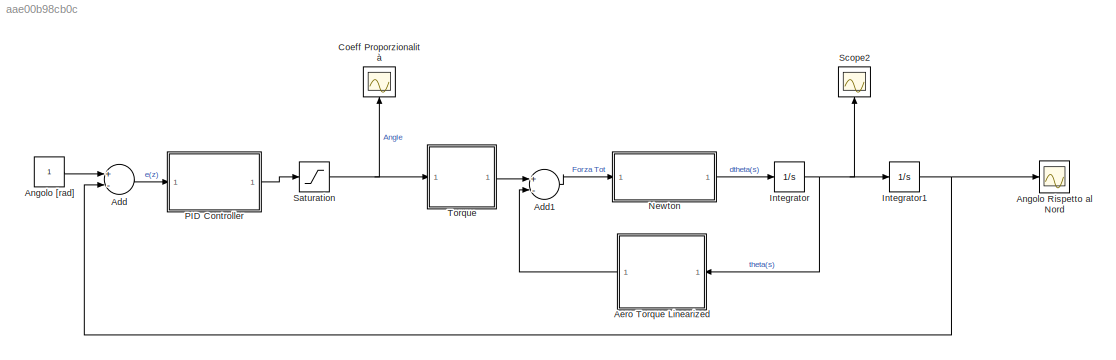
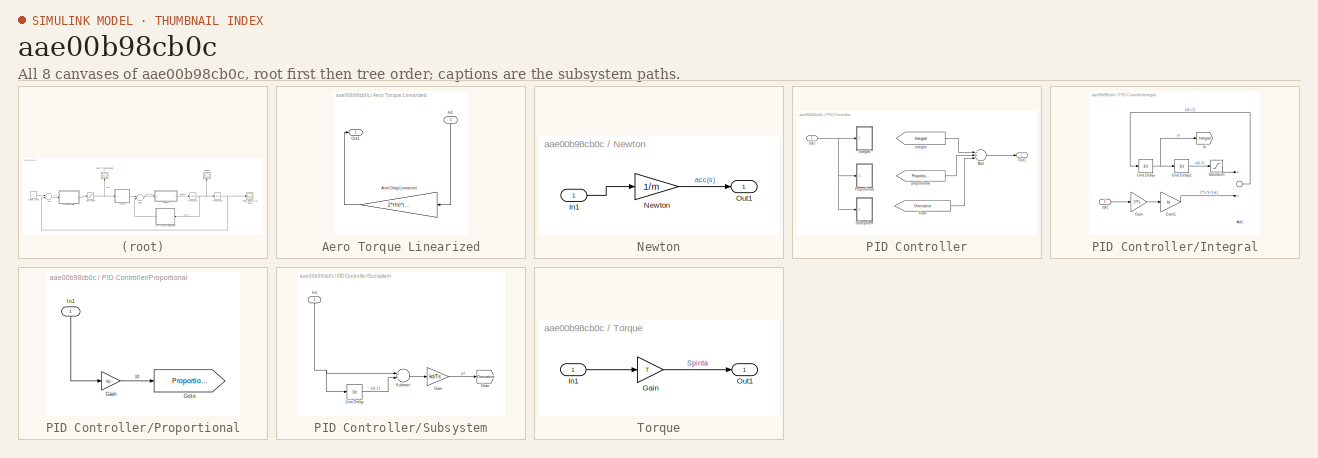
[diagram: thumbnail index - all 8 canvases of the model, root first then tree order]
MODEL slx_aae00b98cb0c
KIND model
BLOCK [Sum] Add
  InputSameDT = off
  Inputs = +-
  OutDataTypeStr = Inherit: Inherit via internal rule
  Ports = [2, 1]
  SaturateOnIntegerOverflow = off
BLOCK [Sum] Add1
  InputSameDT = off
  Inputs = +-
  OutDataTypeStr = Inherit: Inherit via internal rule
  Ports = [2, 1]
  SaturateOnIntegerOverflow = off
BLOCK [SubSystem] Aero Torque Linearized
  FunctionWithSeparateData = off
  MaskHideContents = off
  MinAlgLoopOccurrences = off
  Opaque = off
  Ports = [1, 1]
  PropExecContextOutsideSubsystem = off
  RTWSystemCode = Auto
  RequestExecContextInheritance = off
BLOCK [Gain] Aero Torque Linearized/Aero Drag Linearized
  Gain = 2*rho*(pi*radius^2)*cd*d
  OutDataTypeStr = Inherit: Inherit via internal rule
  ParamDataTypeStr = Inherit: Inherit via internal rule
  SaturateOnIntegerOverflow = off
BLOCK [Inport] Aero Torque Linearized/In1
  IconDisplay = Port number
BLOCK [Outport] Aero Torque Linearized/Out1
  IconDisplay = Port number
BLOCK [Scope] Angolo Rispetto al Nord
  DataFormat = StructureWithTime
  Floating = off
  NumInputPorts = 1
  Ports = [1]
  SampleTime = 0
  ShowLegends = off
BLOCK [Constant] Angolo [rad]
BLOCK [Scope] Coeff Proporzionalità
  DataFormat = StructureWithTime
  Floating = off
  MaxDataPoints = 10000
  NumInputPorts = 1
  Ports = [1]
  SampleTime = 0
  SaveName = ScopeData1
  ShowLegends = off
BLOCK [Integrator] Integrator
  Ports = [1, 1]
BLOCK [Integrator] Integrator1
  Ports = [1, 1]
BLOCK [SubSystem] Newton
  FunctionWithSeparateData = off
  MaskHideContents = off
  MinAlgLoopOccurrences = off
  Opaque = off
  Ports = [1, 1]
  PropExecContextOutsideSubsystem = off
  RTWSystemCode = Auto
  RequestExecContextInheritance = off
BLOCK [Inport] Newton/In1
  IconDisplay = Port number
BLOCK [Gain] Newton/Newton
  Gain = 1/m
  OutDataTypeStr = Inherit: Inherit via internal rule
  ParamDataTypeStr = Inherit: Inherit via internal rule
  SaturateOnIntegerOverflow = off
BLOCK [Outport] Newton/Out1
  IconDisplay = Port number
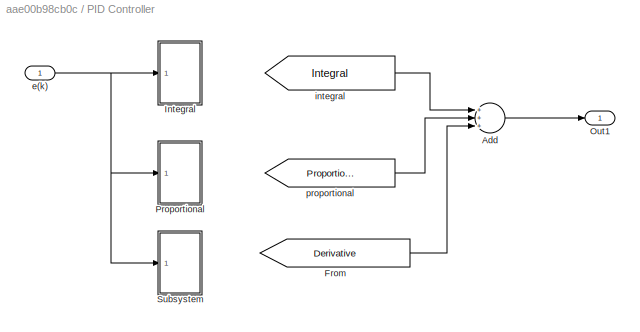
BLOCK [SubSystem] PID Controller
  FunctionWithSeparateData = off
  MaskHideContents = off
  MinAlgLoopOccurrences = off
  Opaque = off
  Ports = [1, 1]
  PropExecContextOutsideSubsystem = off
  RTWSystemCode = Auto
  RequestExecContextInheritance = off
BLOCK [Sum] PID Controller/Add
  InputSameDT = off
  Inputs = +++
  OutDataTypeStr = Inherit: Inherit via internal rule
  Ports = [3, 1]
  SaturateOnIntegerOverflow = off
BLOCK [From] PID Controller/From
  GotoTag = Derivative
  TagVisibility = global
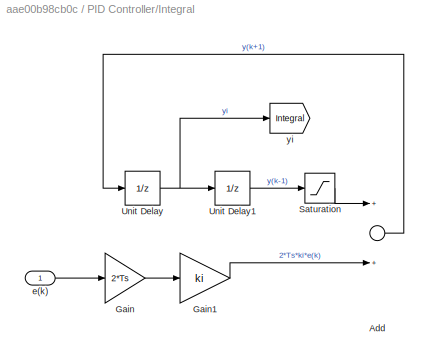
BLOCK [SubSystem] PID Controller/Integral
  FunctionWithSeparateData = off
  MaskHideContents = off
  MinAlgLoopOccurrences = off
  Opaque = off
  Ports = [1]
  PropExecContextOutsideSubsystem = off
  RTWSystemCode = Auto
  RequestExecContextInheritance = off
BLOCK [Sum] PID Controller/Integral/Add
  InputSameDT = off
  OutDataTypeStr = Inherit: Inherit via internal rule
  Ports = [2, 1]
  SaturateOnIntegerOverflow = off
BLOCK [Gain] PID Controller/Integral/Gain
  Gain = 2*Ts
  OutDataTypeStr = Inherit: Inherit via internal rule
  ParamDataTypeStr = Inherit: Inherit via internal rule
  SaturateOnIntegerOverflow = off
BLOCK [Gain] PID Controller/Integral/Gain1
  Gain = ki
  OutDataTypeStr = Inherit: Inherit via internal rule
  ParamDataTypeStr = Inherit: Inherit via internal rule
  SaturateOnIntegerOverflow = off
BLOCK [Saturate] PID Controller/Integral/Saturation
  AttributesFormatString = %<LowerLimit>\n%<UpperLimit>
  InputPortMap = u0
  LowerLimit = -1
  Ports = [1, 1]
  UpperLimit = 1
BLOCK [UnitDelay] PID Controller/Integral/Unit Delay
  InputProcessing = Elements as channels (sample based)
  SampleTime = Ts
BLOCK [UnitDelay] PID Controller/Integral/Unit Delay1
  InputProcessing = Elements as channels (sample based)
  SampleTime = Ts
BLOCK [Inport] PID Controller/Integral/e(k)
  IconDisplay = Port number
BLOCK [Goto] PID Controller/Integral/yi
  GotoTag = Integral
  TagVisibility = global
BLOCK [Outport] PID Controller/Out1
  IconDisplay = Port number
BLOCK [SubSystem] PID Controller/Proportional
  FunctionWithSeparateData = off
  MaskHideContents = off
  MinAlgLoopOccurrences = off
  Opaque = off
  Ports = [1]
  PropExecContextOutsideSubsystem = off
  RTWSystemCode = Auto
  RequestExecContextInheritance = off
BLOCK [Gain] PID Controller/Proportional/Gain
  Gain = kp
  OutDataTypeStr = Inherit: Inherit via internal rule
  ParamDataTypeStr = Inherit: Inherit via internal rule
  SaturateOnIntegerOverflow = off
BLOCK [Goto] PID Controller/Proportional/Goto
  GotoTag = Proportional
  TagVisibility = global
BLOCK [Inport] PID Controller/Proportional/In1
  IconDisplay = Port number
BLOCK [SubSystem] PID Controller/Subsystem
  FunctionWithSeparateData = off
  MaskHideContents = off
  MinAlgLoopOccurrences = off
  Opaque = off
  Ports = [1]
  PropExecContextOutsideSubsystem = off
  RTWSystemCode = Auto
  RequestExecContextInheritance = off
BLOCK [Gain] PID Controller/Subsystem/Gain
  Gain = kd/Ts
  OutDataTypeStr = Inherit: Inherit via internal rule
  ParamDataTypeStr = Inherit: Inherit via internal rule
  SaturateOnIntegerOverflow = off
BLOCK [Goto] PID Controller/Subsystem/Goto
  GotoTag = Derivative
  TagVisibility = global
BLOCK [Inport] PID Controller/Subsystem/In1
  IconDisplay = Port number
BLOCK [Sum] PID Controller/Subsystem/Subtract
  InputSameDT = off
  Inputs = +-
  OutDataTypeStr = Inherit: Inherit via internal rule
  Ports = [2, 1]
  SaturateOnIntegerOverflow = off
BLOCK [UnitDelay] PID Controller/Subsystem/Unit Delay
  InputProcessing = Elements as channels (sample based)
  SampleTime = -1
BLOCK [Inport] PID Controller/e(k)
  IconDisplay = Port number
BLOCK [From] PID Controller/integral
  GotoTag = Integral
  TagVisibility = global
BLOCK [From] PID Controller/proportional
  GotoTag = Proportional
  TagVisibility = global
BLOCK [Saturate] Saturation
  InputPortMap = u0
  LowerLimit = 0
  Ports = [1, 1]
  UpperLimit = 2
BLOCK [Scope] Scope2
  DataFormat = StructureWithTime
  Floating = off
  MaxDataPoints = 10000
  NumInputPorts = 1
  Ports = [1]
  SampleTime = 0
  SaveName = ScopeData2
  ShowLegends = off
BLOCK [SubSystem] Torque
  FunctionWithSeparateData = off
  MaskHideContents = off
  MinAlgLoopOccurrences = off
  Opaque = off
  Ports = [1, 1]
  PropExecContextOutsideSubsystem = off
  RTWSystemCode = Auto
  RequestExecContextInheritance = off
BLOCK [Gain] Torque/Gain
  Gain = T
  OutDataTypeStr = Inherit: Inherit via internal rule
  ParamDataTypeStr = Inherit: Inherit via internal rule
  SaturateOnIntegerOverflow = off
BLOCK [Inport] Torque/In1
  IconDisplay = Port number
BLOCK [Outport] Torque/Out1
  IconDisplay = Port number
LINE Add1:1 -> Newton:1
LINE Add:1 -> PID Controller:1
LINE Aero Torque Linearized/Aero Drag Linearized:1 -> Aero Torque Linearized/Out1:1
LINE Aero Torque Linearized/In1:1 -> Aero Torque Linearized/Aero Drag Linearized:1
LINE Aero Torque Linearized:1 -> Add1:2
LINE Angolo [rad]:1 -> Add:1
NET Integrator1:1 -> Add:2, Angolo Rispetto al Nord:1
NET Integrator:1 -> Aero Torque Linearized:1, Integrator1:1, Scope2:1
LINE Newton/In1:1 -> Newton/Newton:1
LINE Newton/Newton:1 -> Newton/Out1:1
LINE Newton:1 -> Integrator:1
LINE PID Controller/Add:1 -> PID Controller/Out1:1
LINE PID Controller/From:1 -> PID Controller/Add:3
LINE PID Controller/Integral/Add:1 -> PID Controller/Integral/Unit Delay:1
LINE PID Controller/Integral/Gain1:1 -> PID Controller/Integral/Add:2
LINE PID Controller/Integral/Gain:1 -> PID Controller/Integral/Gain1:1
LINE PID Controller/Integral/Saturation:1 -> PID Controller/Integral/Add:1
LINE PID Controller/Integral/Unit Delay1:1 -> PID Controller/Integral/Saturation:1
NET PID Controller/Integral/Unit Delay:1 -> PID Controller/Integral/Unit Delay1:1, PID Controller/Integral/yi:1
LINE PID Controller/Integral/e(k):1 -> PID Controller/Integral/Gain:1
LINE PID Controller/Proportional/Gain:1 -> PID Controller/Proportional/Goto:1
LINE PID Controller/Proportional/In1:1 -> PID Controller/Proportional/Gain:1
LINE PID Controller/Subsystem/Gain:1 -> PID Controller/Subsystem/Goto:1
NET PID Controller/Subsystem/In1:1 -> PID Controller/Subsystem/Subtract:1, PID Controller/Subsystem/Unit Delay:1
LINE PID Controller/Subsystem/Subtract:1 -> PID Controller/Subsystem/Gain:1
LINE PID Controller/Subsystem/Unit Delay:1 -> PID Controller/Subsystem/Subtract:2
NET PID Controller/e(k):1 -> PID Controller/Integral:1, PID Controller/Proportional:1, PID Controller/Subsystem:1
LINE PID Controller/integral:1 -> PID Controller/Add:1
LINE PID Controller/proportional:1 -> PID Controller/Add:2
LINE PID Controller:1 -> Saturation:1
NET Saturation:1 -> Coeff Proporzionalità:1, Torque:1
LINE Torque/Gain:1 -> Torque/Out1:1
LINE Torque/In1:1 -> Torque/Gain:1
LINE Torque:1 -> Add1:1
note: NET lines group one-source signal fan-out (src -> all destinations, sorted); 1:1 wires keep LINE
